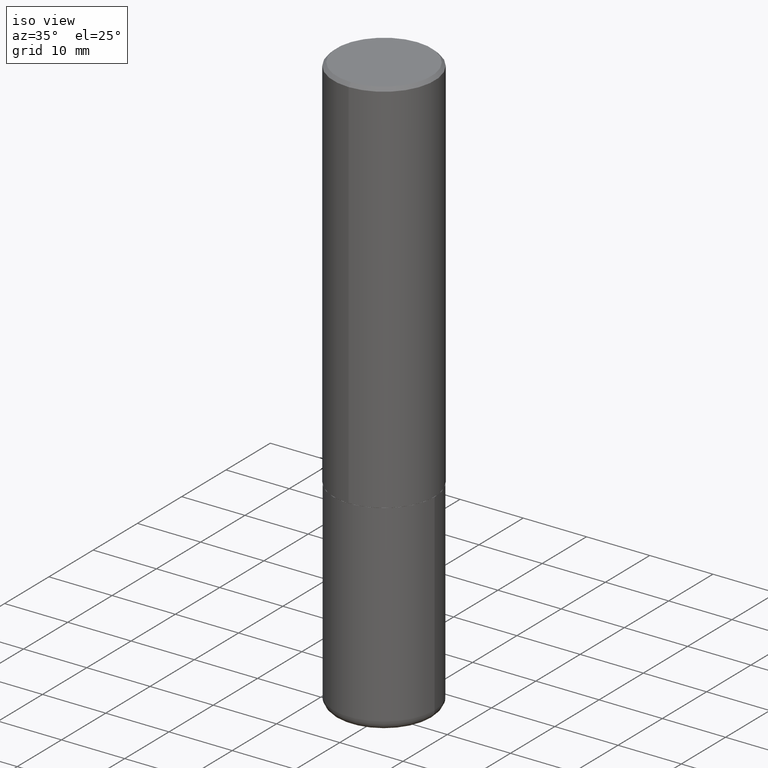
[diagram: clean part render]
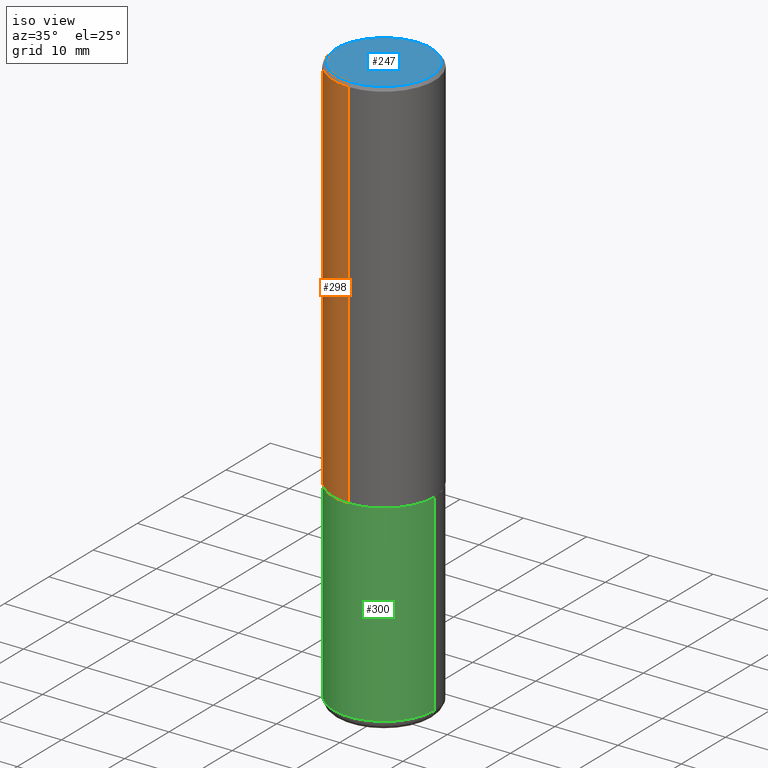
[diagram: same view with three faces highlighted in distinct colors, each labeled with its STEP entity id]
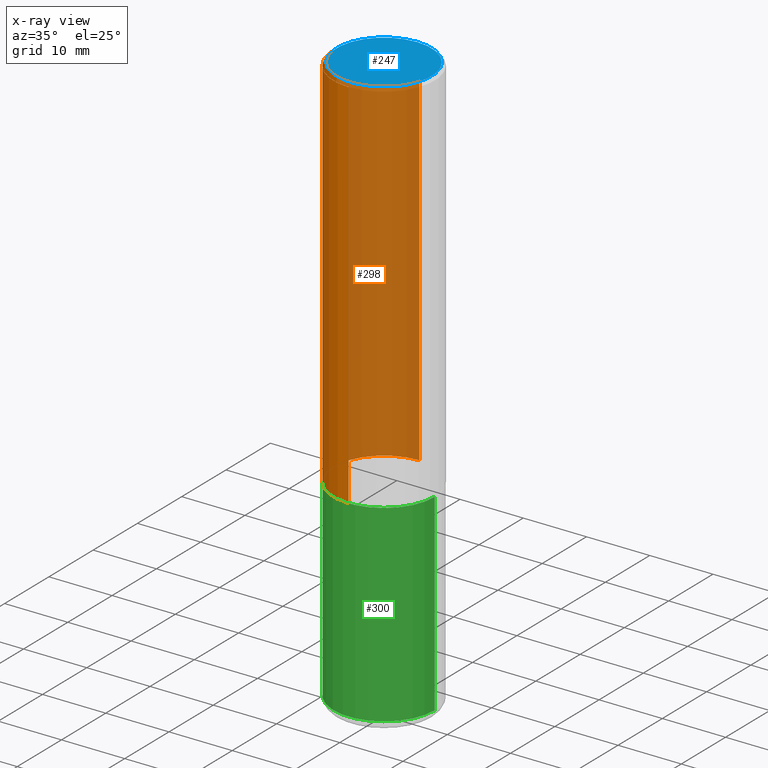
[diagram: x-ray of the same camera — body ghosted, the three highlighted faces saturated]
A machine part, iso view with three faces highlighted in distinct colors.
The next image is the same camera in x-ray (body ghosted, the three faces saturated) — at least one of them is partly hidden behind the body in this view.
Their STEP definitions:

[orange] entity #298 — the highlighted cylindrical surface (partial cylindrical patch) has radius 7.9997 mm, axis along (-0, 0, 1).
#3 = VERTEX_POINT ( 'NONE', #195 ) ;
#17 = FACE_OUTER_BOUND ( 'NONE', #102, .T. ) ;
#35 = AXIS2_PLACEMENT_3D ( 'NONE', #87, #246, #363 ) ;
#58 = ORIENTED_EDGE ( 'NONE', *, *, #280, .F. ) ;
#71 = EDGE_CURVE ( 'NONE', #379, #3, #277, .T. ) ;
#75 = DIRECTION ( 'NONE',  ( -2.445169622182784195E-29, 3.491909787363010375E-15, 1.000000000000000000 ) ) ;
#86 = DIRECTION ( 'NONE',  ( -2.445169622182784195E-29, 3.491909787363009980E-15, 1.000000000000000000 ) ) ;
#87 = CARTESIAN_POINT ( 'NONE',  ( 0.000000000000000000, 0.000000000000000000, 0.000000000000000000 ) ) ;
#88 = EDGE_CURVE ( 'NONE', #379, #154, #89, .T. ) ;
#89 = CIRCLE ( 'NONE', #406, 0.3149500000000002853 ) ;
#91 = CARTESIAN_POINT ( 'NONE',  ( 2.237854346276465567E-15, 0.3149499999999920141, -2.361200000000000632 ) ) ;
#102 = EDGE_LOOP ( 'NONE', ( #370, #194, #254, #58 ) ) ;
#120 = DIRECTION ( 'NONE',  ( -2.445169622182784195E-29, 3.491909787363010375E-15, 1.000000000000000000 ) ) ;
#134 = VECTOR ( 'NONE', #86, 39.37007874015748143 ) ;
#145 = CARTESIAN_POINT ( 'NONE',  ( -2.160713844398143363E-15, -0.3149500000000000632, -0.01999999999999896652 ) ) ;
#150 = CARTESIAN_POINT ( 'NONE',  ( 5.773534511897989086E-29, -8.245097389921538599E-15, -2.361199999999999743 ) ) ;
#154 = VERTEX_POINT ( 'NONE', #297 ) ;
#163 = VERTEX_POINT ( 'NONE', #145 ) ;
#176 = DIRECTION ( 'NONE',  ( -6.982962677686265922E-15, -1.000000000000000000, 3.469564049740290009E-15 ) ) ;
#194 = ORIENTED_EDGE ( 'NONE', *, *, #88, .T. ) ;
#195 = CARTESIAN_POINT ( 'NONE',  ( 2.199284095337289871E-15, 0.3149499999999999522, -0.02000000000000116962 ) ) ;
#217 = CIRCLE ( 'NONE', #294, 0.3149500000000000077 ) ;
#246 = DIRECTION ( 'NONE',  ( -2.445169622182784195E-29, 3.491909787363010375E-15, 1.000000000000000000 ) ) ;
#253 = LINE ( 'NONE', #380, #290 ) ;
#254 = ORIENTED_EDGE ( 'NONE', *, *, #347, .T. ) ;
#255 = DIRECTION ( 'NONE',  ( -2.445169622182784195E-29, 3.491909787363009980E-15, 1.000000000000000000 ) ) ;
#277 = LINE ( 'NONE', #362, #134 ) ;
#280 = EDGE_CURVE ( 'NONE', #3, #163, #217, .T. ) ;
#290 = VECTOR ( 'NONE', #255, 39.37007874015748143 ) ;
#294 = AXIS2_PLACEMENT_3D ( 'NONE', #333, #120, #339 ) ;
#297 = CARTESIAN_POINT ( 'NONE',  ( -2.199284095337233467E-15, -0.3149500000000085564, -2.361199999999998411 ) ) ;
#298 = ADVANCED_FACE ( 'NONE', ( #17 ), #371, .T. ) ;
#333 = CARTESIAN_POINT ( 'NONE',  ( 4.890339244365585170E-31, -6.983819574726043281E-17, -0.02000000000000006981 ) ) ;
#339 = DIRECTION ( 'NONE',  ( -6.982962677686265922E-15, -1.000000000000000000, 3.496670018878889100E-15 ) ) ;
#347 = EDGE_CURVE ( 'NONE', #154, #163, #253, .T. ) ;
#362 = CARTESIAN_POINT ( 'NONE',  ( 2.237854346276435985E-15, 0.3149500000000001743, -1.099776987529980703E-15 ) ) ;
#363 = DIRECTION ( 'NONE',  ( -6.982962677686264344E-15, -1.000000000000000000, 3.491909787363010375E-15 ) ) ;
#370 = ORIENTED_EDGE ( 'NONE', *, *, #71, .F. ) ;
#371 = CYLINDRICAL_SURFACE ( 'NONE', #35, 0.3149500000000001743 ) ;
#379 = VERTEX_POINT ( 'NONE', #91 ) ;
#380 = CARTESIAN_POINT ( 'NONE',  ( -2.199284095337290265E-15, -0.3149500000000001743, 1.099776987529980703E-15 ) ) ;
#406 = AXIS2_PLACEMENT_3D ( 'NONE', #150, #75, #176 ) ;

[blue] entity #247 — the highlighted planar face has unit normal (0, -0, -1).
#10 = DIRECTION ( 'NONE',  ( 2.445169622182783915E-29, -3.491909787363009980E-15, -1.000000000000000000 ) ) ;
#19 = VERTEX_POINT ( 'NONE', #174 ) ;
#22 = DIRECTION ( 'NONE',  ( 6.982962677686265922E-15, 1.000000000000000000, -3.491909787363009980E-15 ) ) ;
#31 = ORIENTED_EDGE ( 'NONE', *, *, #259, .T. ) ;
#41 = CIRCLE ( 'NONE', #104, 0.2949499999999997679 ) ;
#47 = DIRECTION ( 'NONE',  ( -2.445169622182784195E-29, 3.491909787363010375E-15, 1.000000000000000000 ) ) ;
#49 = AXIS2_PLACEMENT_3D ( 'NONE', #364, #47, #338 ) ;
#51 = EDGE_CURVE ( 'NONE', #256, #19, #293, .T. ) ;
#53 = CARTESIAN_POINT ( 'NONE',  ( -2.092108864420427242E-15, -0.2949499999999997679, 1.239222274688573328E-15 ) ) ;
#104 = AXIS2_PLACEMENT_3D ( 'NONE', #184, #155, #309 ) ;
#146 = CARTESIAN_POINT ( 'NONE',  ( 2.059624841783562486E-15, 0.2949499999999997679, -9.252970503297919853E-16 ) ) ;
#155 = DIRECTION ( 'NONE',  ( -2.445169622182784195E-29, 3.491909787363010375E-15, 1.000000000000000000 ) ) ;
#174 = CARTESIAN_POINT ( 'NONE',  ( 2.129454468560426178E-15, 0.2949499999999997679, -8.206553088768647725E-16 ) ) ;
#184 = CARTESIAN_POINT ( 'NONE',  ( -5.117336148260046858E-45, 7.307990422923716453E-31, 2.092834829058542282E-16 ) ) ;
#203 = PLANE ( 'NONE',  #223 ) ;
#223 = AXIS2_PLACEMENT_3D ( 'NONE', #146, #10, #22 ) ;
#247 = ADVANCED_FACE ( 'NONE', ( #358 ), #203, .F. ) ;
#256 = VERTEX_POINT ( 'NONE', #53 ) ;
#259 = EDGE_CURVE ( 'NONE', #19, #256, #41, .T. ) ;
#293 = CIRCLE ( 'NONE', #49, 0.2949499999999997679 ) ;
#302 = EDGE_LOOP ( 'NONE', ( #31, #403 ) ) ;
#309 = DIRECTION ( 'NONE',  ( -6.982962677686265922E-15, -1.000000000000000000, 3.491909787363010375E-15 ) ) ;
#338 = DIRECTION ( 'NONE',  ( -6.982962677686265922E-15, -1.000000000000000000, 3.491909787363010375E-15 ) ) ;
#358 = FACE_OUTER_BOUND ( 'NONE', #302, .T. ) ;
#364 = CARTESIAN_POINT ( 'NONE',  ( -5.117336148260046858E-45, 7.307990422923716453E-31, 2.092834829058542282E-16 ) ) ;
#403 = ORIENTED_EDGE ( 'NONE', *, *, #51, .T. ) ;

[green] entity #300 — the highlighted cylindrical surface (partial cylindrical patch) has radius 7.9997 mm, axis along (-0, 0, 1).
#8 = CARTESIAN_POINT ( 'NONE',  ( -0.3149500000000000077, 2.237854346276435590E-15, -1.549218606675782676E-29 ) ) ;
#24 = DIRECTION ( 'NONE',  ( -2.445468806185136597E-29, 3.491481338843145583E-15, 1.000000000000000000 ) ) ;
#26 = DIRECTION ( 'NONE',  ( -2.445468806185136877E-29, 3.491481338843145188E-15, 1.000000000000000000 ) ) ;
#43 = LINE ( 'NONE', #8, #119 ) ;
#52 = DIRECTION ( 'NONE',  ( -2.445468806185136597E-29, 3.491481338843145583E-15, 1.000000000000000000 ) ) ;
#60 = VECTOR ( 'NONE', #26, 39.37007874015748143 ) ;
#81 = CARTESIAN_POINT ( 'NONE',  ( 5.776686413970529753E-29, -8.247577218615278049E-15, -2.362199999999999633 ) ) ;
#92 = EDGE_LOOP ( 'NONE', ( #240, #252, #157, #218 ) ) ;
#110 = EDGE_CURVE ( 'NONE', #213, #415, #226, .T. ) ;
#116 = CARTESIAN_POINT ( 'NONE',  ( -0.3149500000000000077, -1.020194451588780718E-14, -3.562899999999999956 ) ) ;
#119 = VECTOR ( 'NONE', #178, 39.37007874015748143 ) ;
#122 = VERTEX_POINT ( 'NONE', #116 ) ;
#144 = CARTESIAN_POINT ( 'NONE',  ( 0.3149500000000000077, -1.463908295750153462E-14, -3.562899999999999956 ) ) ;
#148 = DIRECTION ( 'NONE',  ( 1.000000000000000000, -6.982962677686266711E-15, 4.876176775795936353E-29 ) ) ;
#149 = EDGE_CURVE ( 'NONE', #122, #213, #43, .T. ) ;
#152 = CYLINDRICAL_SURFACE ( 'NONE', #159, 0.3149500000000000077 ) ;
#157 = ORIENTED_EDGE ( 'NONE', *, *, #411, .T. ) ;
#159 = AXIS2_PLACEMENT_3D ( 'NONE', #161, #24, #148 ) ;
#161 = CARTESIAN_POINT ( 'NONE',  ( 0.000000000000000000, 0.000000000000000000, 0.000000000000000000 ) ) ;
#173 = EDGE_CURVE ( 'NONE', #122, #192, #222, .T. ) ;
#178 = DIRECTION ( 'NONE',  ( -2.445468806185136877E-29, 3.491481338843145188E-15, 1.000000000000000000 ) ) ;
#192 = VERTEX_POINT ( 'NONE', #144 ) ;
#209 = DIRECTION ( 'NONE',  ( 1.000000000000000000, -6.982962677686266711E-15, 0.000000000000000000 ) ) ;
#213 = VERTEX_POINT ( 'NONE', #232 ) ;
#214 = FACE_OUTER_BOUND ( 'NONE', #92, .T. ) ;
#218 = ORIENTED_EDGE ( 'NONE', *, *, #110, .F. ) ;
#222 = CIRCLE ( 'NONE', #282, 0.3149500000000000632 ) ;
#226 = CIRCLE ( 'NONE', #400, 0.3149500000000000077 ) ;
#232 = CARTESIAN_POINT ( 'NONE',  ( -0.3149500000000000077, -8.105833694113324624E-15, -2.362199999999999633 ) ) ;
#240 = ORIENTED_EDGE ( 'NONE', *, *, #149, .F. ) ;
#252 = ORIENTED_EDGE ( 'NONE', *, *, #173, .T. ) ;
#282 = AXIS2_PLACEMENT_3D ( 'NONE', #351, #317, #399 ) ;
#286 = CARTESIAN_POINT ( 'NONE',  ( 0.3149500000000000077, -2.199284095337289871E-15, 1.535751875536930130E-29 ) ) ;
#300 = ADVANCED_FACE ( 'NONE', ( #214 ), #152, .T. ) ;
#317 = DIRECTION ( 'NONE',  ( -2.445468806185136597E-29, 3.491481338843145583E-15, 1.000000000000000000 ) ) ;
#319 = CARTESIAN_POINT ( 'NONE',  ( 0.3149500000000000077, -1.044686131395256792E-14, -2.362199999999999633 ) ) ;
#327 = LINE ( 'NONE', #286, #60 ) ;
#351 = CARTESIAN_POINT ( 'NONE',  ( 8.712960809557023143E-29, -1.243979886216424317E-14, -3.562899999999999956 ) ) ;
#399 = DIRECTION ( 'NONE',  ( 1.000000000000000000, -6.982962677686268288E-15, 0.000000000000000000 ) ) ;
#400 = AXIS2_PLACEMENT_3D ( 'NONE', #81, #52, #209 ) ;
#411 = EDGE_CURVE ( 'NONE', #192, #415, #327, .T. ) ;
#415 = VERTEX_POINT ( 'NONE', #319 ) ;